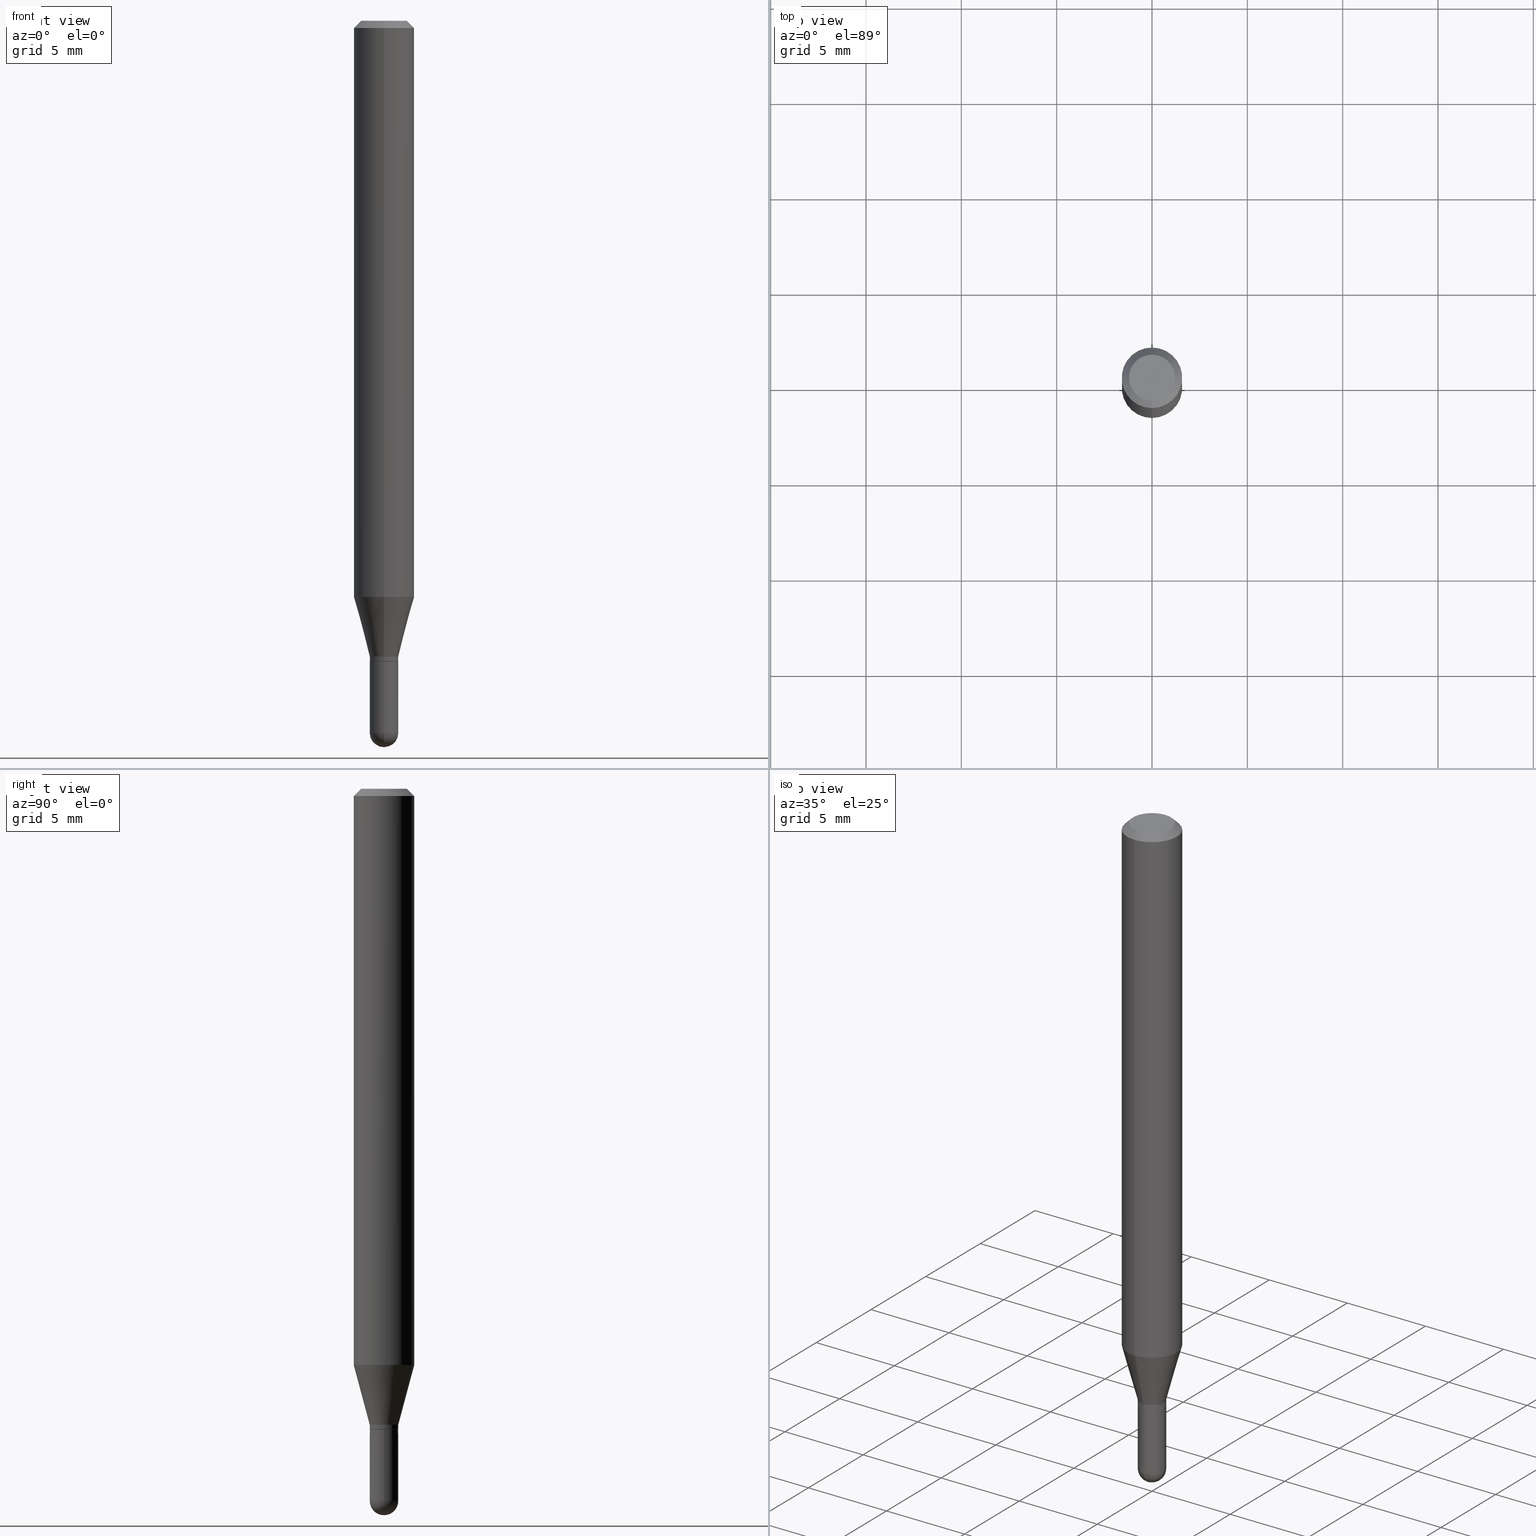
[diagram: canonical four-view strip — front | top / right | iso, engineering-drawing reading convention]
A machine part, canonical four-view strip (front | top / right | iso — engineering-drawing reading convention). The complete STEP part file that produces these views, byte-faithful:
ISO-10303-21;
HEADER;
FILE_DESCRIPTION (( 'STEP AP203' ),
    '1' );
FILE_NAME ('00936.STEP',
    '2024-03-07T19:02:21',
    ( '' ),
    ( '' ),
    'SwSTEP 2.0',
    'SolidWorks 2023',
    '' );
FILE_SCHEMA (( 'CONFIG_CONTROL_DESIGN' ));
ENDSEC;

DATA;
#1 = LINE ( 'NONE', #76, #365 ) ;
#2 = CARTESIAN_POINT ( 'NONE',  ( 0.02950000000000000192, -5.082723959020908406E-15, -1.470500000000000140 ) ) ;
#3 = EDGE_CURVE ( 'NONE', #32, #80, #479, .T. ) ;
#4 =( GEOMETRIC_REPRESENTATION_CONTEXT ( 3 ) GLOBAL_UNCERTAINTY_ASSIGNED_CONTEXT ( ( #406 ) ) GLOBAL_UNIT_ASSIGNED_CONTEXT ( ( #170, #12, #52 ) ) REPRESENTATION_CONTEXT ( 'NONE', 'WORKASPACE' ) );
#5 = CYLINDRICAL_SURFACE ( 'NONE', #243, 0.02950000000000000192 ) ;
#6 = DIRECTION ( 'NONE',  ( 4.937700262164548042E-15, 0.7071067811865451302, -0.7071067811865499042 ) ) ;
#7 = PERSON_AND_ORGANIZATION ( #161, #386 ) ;
#8 = DIRECTION ( 'NONE',  ( -2.445457374609908707E-29, 3.491497709509516713E-15, 1.000000000000000000 ) ) ;
#9 = CIRCLE ( 'NONE', #187, 0.06250000000000000000 ) ;
#10 = APPROVAL_PERSON_ORGANIZATION ( #86, #240, #371 ) ;
#11 = EDGE_CURVE ( 'NONE', #151, #430, #1, .T. ) ;
#12 =( NAMED_UNIT ( * ) PLANE_ANGLE_UNIT ( ) SI_UNIT ( $, .RADIAN. ) );
#13 = ORIENTED_EDGE ( 'NONE', *, *, #380, .F. ) ;
#14 = ADVANCED_BREP_SHAPE_REPRESENTATION ( '00936', ( #142, #483, #279 ), #4 ) ;
#15 = COORDINATED_UNIVERSAL_TIME_OFFSET ( 5, 0, .BEHIND. ) ;
#16 = ORIENTED_EDGE ( 'NONE', *, *, #509, .T. ) ;
#17 = EDGE_CURVE ( 'NONE', #156, #393, #426, .T. ) ;
#18 = EDGE_LOOP ( 'NONE', ( #117, #42, #305, #98 ) ) ;
#19 = CONICAL_SURFACE ( 'NONE', #316, 0.06250000000000000000, 0.7853981633974483900 ) ;
#20 = FACE_OUTER_BOUND ( 'NONE', #140, .T. ) ;
#21 = AXIS2_PLACEMENT_3D ( 'NONE', #355, #244, #467 ) ;
#22 = VERTEX_POINT ( 'NONE', #471 ) ;
#23 = FACE_OUTER_BOUND ( 'NONE', #493, .T. ) ;
#24 = SHAPE_DEFINITION_REPRESENTATION ( #246, #14 ) ;
#25 = ORIENTED_EDGE ( 'NONE', *, *, #492, .T. ) ;
#26 = DIRECTION ( 'NONE',  ( 2.445457374609908147E-29, -3.491497709509517108E-15, -1.000000000000000000 ) ) ;
#27 = ORIENTED_EDGE ( 'NONE', *, *, #405, .T. ) ;
#28 = EDGE_CURVE ( 'NONE', #188, #60, #48, .T. ) ;
#29 = CARTESIAN_POINT ( 'NONE',  ( 3.316907271900976096E-16, 0.04749999999999999362, -1.702759121942912783E-16 ) ) ;
#30 = CIRCLE ( 'NONE', #95, 0.02950000000000000192 ) ;
#31 = DATE_TIME_ROLE ( 'classification_date' ) ;
#32 = VERTEX_POINT ( 'NONE', #504 ) ;
#33 = CARTESIAN_POINT ( 'NONE',  ( 3.210885532862809934E-29, -4.584336492585996193E-15, -1.313000000000000167 ) ) ;
#34 = ORIENTED_EDGE ( 'NONE', *, *, #345, .F. ) ;
#35 = CARTESIAN_POINT ( 'NONE',  ( 3.596061879495243621E-29, -5.134223308768845522E-15, -1.470500000000000140 ) ) ;
#36 = COORDINATED_UNIVERSAL_TIME_OFFSET ( 5, 0, .BEHIND. ) ;
#37 = ADVANCED_FACE ( 'NONE', ( #278 ), #242, .T. ) ;
#38 = CYLINDRICAL_SURFACE ( 'NONE', #331, 0.02950000000000000192 ) ;
#39 = DIRECTION ( 'NONE',  ( 6.982962677686265922E-15, 1.000000000000000000, -3.483106191921935554E-15 ) ) ;
#40 = AXIS2_PLACEMENT_3D ( 'NONE', #264, #423, #460 ) ;
#41 = CIRCLE ( 'NONE', #158, 0.02899999999999999800 ) ;
#42 = ORIENTED_EDGE ( 'NONE', *, *, #17, .T. ) ;
#43 = CARTESIAN_POINT ( 'NONE',  ( 3.210885532862809934E-29, -4.584336492585996193E-15, -1.313000000000000167 ) ) ;
#44 = ORIENTED_EDGE ( 'NONE', *, *, #57, .T. ) ;
#45 = ADVANCED_FACE ( 'NONE', ( #281 ), #38, .T. ) ;
#46 = DIRECTION ( 'NONE',  ( -6.982962677686265922E-15, -1.000000000000000000, 3.491497709509516713E-15 ) ) ;
#47 = VERTEX_POINT ( 'NONE', #125 ) ;
#48 = CIRCLE ( 'NONE', #49, 0.06250000000000000000 ) ;
#49 = AXIS2_PLACEMENT_3D ( 'NONE', #247, #362, #115 ) ;
#50 = CC_DESIGN_APPROVAL ( #124, ( #308 ) ) ;
#51 = LENGTH_MEASURE_WITH_UNIT ( LENGTH_MEASURE( 0.02539999999999999897 ), #209 );
#52 =( NAMED_UNIT ( * ) SI_UNIT ( $, .STERADIAN. ) SOLID_ANGLE_UNIT ( ) );
#53 = CC_DESIGN_PERSON_AND_ORGANIZATION_ASSIGNMENT ( #347, #385, ( #245 ) ) ;
#54 = CARTESIAN_POINT ( 'NONE',  ( 4.364351673553919652E-16, 0.06249999999999995143, -0.01500000000000022669 ) ) ;
#55 = ORIENTED_EDGE ( 'NONE', *, *, #28, .F. ) ;
#56 = CIRCLE ( 'NONE', #465, 0.02950000000000002967 ) ;
#57 = EDGE_CURVE ( 'NONE', #147, #32, #428, .T. ) ;
#58 = ORIENTED_EDGE ( 'NONE', *, *, #3, .T. ) ;
#59 = DIRECTION ( 'NONE',  ( -6.982962677686265133E-15, -1.000000000000000000, 3.491497709509516319E-15 ) ) ;
#60 = VERTEX_POINT ( 'NONE', #511 ) ;
#61 = AXIS2_PLACEMENT_3D ( 'NONE', #306, #420, #456 ) ;
#62 = DIRECTION ( 'NONE',  ( -4.851104656540964275E-15, -0.7071067811865500152, -0.7071067811865450192 ) ) ;
#63 = LOCAL_TIME ( 14, 2, 21.00000000000000000, #15 ) ;
#64 = ORIENTED_EDGE ( 'NONE', *, *, #183, .T. ) ;
#65 = DIRECTION ( 'NONE',  ( 6.982962677686265922E-15, 1.000000000000000000, -3.483106191921935554E-15 ) ) ;
#66 = EDGE_CURVE ( 'NONE', #419, #80, #249, .T. ) ;
#67 = ORIENTED_EDGE ( 'NONE', *, *, #447, .T. ) ;
#68 = DIRECTION ( 'NONE',  ( -2.445457374609908987E-29, 3.491497709509517108E-15, 1.000000000000000000 ) ) ;
#69 = VERTEX_POINT ( 'NONE', #391 ) ;
#70 = CARTESIAN_POINT ( 'NONE',  ( 2.078337502098613392E-16, 0.02899999999999538017, -1.323000000000000176 ) ) ;
#71 = CARTESIAN_POINT ( 'NONE',  ( 0.02950000000000000192, -2.059973989917448660E-16, 1.438472148859801150E-30 ) ) ;
#72 = CARTESIAN_POINT ( 'NONE',  ( 2.166563228332078475E-46, -3.093307054855400390E-32, -8.859541985178464573E-18 ) ) ;
#73 = PERSON_AND_ORGANIZATION ( #161, #386 ) ;
#74 = ORIENTED_EDGE ( 'NONE', *, *, #183, .F. ) ;
#75 = DIRECTION ( 'NONE',  ( -1.000000000000000000, 6.982962677686266711E-15, -4.883557194083112340E-29 ) ) ;
#76 = CARTESIAN_POINT ( 'NONE',  ( 2.096101070492630704E-16, 0.02949999999999561653, -1.313000000000000167 ) ) ;
#77 = DIRECTION ( 'NONE',  ( 2.445457374609908707E-29, -3.491497709509516713E-15, -1.000000000000000000 ) ) ;
#78 = CIRCLE ( 'NONE', #61, 0.02949999999999992212 ) ;
#79 = CIRCLE ( 'NONE', #259, 0.04749999999999999362 ) ;
#80 = VERTEX_POINT ( 'NONE', #195 ) ;
#81 = CARTESIAN_POINT ( 'NONE',  ( 3.235340106608908696E-29, -4.619251469681091147E-15, -1.323000000000000176 ) ) ;
#82 = CALENDAR_DATE ( 2024, 7, 3 ) ;
#83 = DIRECTION ( 'NONE',  ( -2.445468806185136877E-29, 3.491481338843145188E-15, 1.000000000000000000 ) ) ;
#84 = DIRECTION ( 'NONE',  ( -6.982962677686265922E-15, -1.000000000000000000, 0.000000000000000000 ) ) ;
#85 = PRODUCT_RELATED_PRODUCT_CATEGORY ( 'detail', '', ( #233 ) ) ;
#86 = PERSON_AND_ORGANIZATION ( #161, #386 ) ;
#87 = DIRECTION ( 'NONE',  ( 1.000000000000000000, -6.982962677686265922E-15, 4.876176775795935793E-29 ) ) ;
#88 = AXIS2_PLACEMENT_3D ( 'NONE', #407, #441, #290 ) ;
#89 = DIRECTION ( 'NONE',  ( 1.000000000000000000, 0.000000000000000000, 0.000000000000000000 ) ) ;
#90 = CC_DESIGN_PERSON_AND_ORGANIZATION_ASSIGNMENT ( #372, #296, ( #218 ) ) ;
#91 = EDGE_CURVE ( 'NONE', #419, #47, #30, .T. ) ;
#92 = CARTESIAN_POINT ( 'NONE',  ( 4.440892098500625669E-16, 0.06250000000000000000, -2.182186068443447946E-16 ) ) ;
#93 = CARTESIAN_POINT ( 'NONE',  ( -3.773273898774340269E-16, -0.04749999999999999362, 1.569865992165235968E-16 ) ) ;
#94 = AXIS2_PLACEMENT_3D ( 'NONE', #162, #354, #154 ) ;
#95 = AXIS2_PLACEMENT_3D ( 'NONE', #357, #508, #468 ) ;
#96 = CARTESIAN_POINT ( 'NONE',  ( 3.235340106608908696E-29, -4.619251469681091147E-15, -1.323000000000000176 ) ) ;
#97 = APPROVAL_DATE_TIME ( #449, #240 ) ;
#98 = ORIENTED_EDGE ( 'NONE', *, *, #129, .F. ) ;
#99 = DIRECTION ( 'NONE',  ( 1.000000000000000000, -6.982962677686250933E-15, 0.000000000000000000 ) ) ;
#100 = ORIENTED_EDGE ( 'NONE', *, *, #181, .F. ) ;
#101 = FACE_OUTER_BOUND ( 'NONE', #502, .T. ) ;
#102 = VECTOR ( 'NONE', #83, 39.37007874015748143 ) ;
#103 = ORIENTED_EDGE ( 'NONE', *, *, #123, .T. ) ;
#104 = DIRECTION ( 'NONE',  ( 1.000000000000000000, -6.982962677686250144E-15, 0.000000000000000000 ) ) ;
#105 = ADVANCED_FACE ( 'NONE', ( #432 ), #5, .T. ) ;
#106 = APPROVAL_ROLE ( '' ) ;
#107 = ORIENTED_EDGE ( 'NONE', *, *, #364, .F. ) ;
#108 = DIRECTION ( 'NONE',  ( -2.445457374609908707E-29, 3.491497709509516713E-15, 1.000000000000000000 ) ) ;
#109 = ORIENTED_EDGE ( 'NONE', *, *, #337, .T. ) ;
#110 = FACE_OUTER_BOUND ( 'NONE', #344, .T. ) ;
#111 = ORIENTED_EDGE ( 'NONE', *, *, #57, .F. ) ;
#112 = ADVANCED_FACE ( 'NONE', ( #477 ), #252, .T. ) ;
#113 = DIRECTION ( 'NONE',  ( -2.445457374609908707E-29, 3.491497709509516713E-15, 1.000000000000000000 ) ) ;
#114 = AXIS2_PLACEMENT_3D ( 'NONE', #503, #359, #398 ) ;
#115 = DIRECTION ( 'NONE',  ( -6.982962677686265922E-15, -1.000000000000000000, 3.483106191921935554E-15 ) ) ;
#116 = CARTESIAN_POINT ( 'NONE',  ( 3.668186061914865531E-31, -5.237246564264278866E-17, -0.01500000000000000812 ) ) ;
#117 = ORIENTED_EDGE ( 'NONE', *, *, #164, .F. ) ;
#118 = LINE ( 'NONE', #469, #396 ) ;
#119 = ORIENTED_EDGE ( 'NONE', *, *, #389, .F. ) ;
#120 = DIRECTION ( 'NONE',  ( 5.024295867788190974E-15, 0.7071067811865681119, 0.7071067811865270336 ) ) ;
#121 = AXIS2_PLACEMENT_3D ( 'NONE', #180, #351, #99 ) ;
#122 = CIRCLE ( 'NONE', #507, 0.02950000000000019967 ) ;
#123 = EDGE_CURVE ( 'NONE', #485, #188, #439, .T. ) ;
#124 = APPROVAL ( #499, 'UNSPECIFIED' ) ;
#125 = CARTESIAN_POINT ( 'NONE',  ( 2.059973989917809071E-16, 0.02949999999999488101, -1.470500000000000140 ) ) ;
#126 = DIRECTION ( 'NONE',  ( 6.982962677686266711E-15, 1.000000000000000000, 0.000000000000000000 ) ) ;
#127 = LINE ( 'NONE', #92, #292 ) ;
#128 = ORIENTED_EDGE ( 'NONE', *, *, #509, .F. ) ;
#129 = EDGE_CURVE ( 'NONE', #47, #147, #348, .T. ) ;
#130 = APPROVAL_STATUS ( 'not_yet_approved' ) ;
#131 = AXIS2_PLACEMENT_3D ( 'NONE', #464, #113, #321 ) ;
#132 = DESIGN_CONTEXT ( 'detailed design', #229, 'design' ) ;
#133 = APPROVAL_ROLE ( '' ) ;
#134 = PERSON_AND_ORGANIZATION ( #161, #386 ) ;
#135 = ADVANCED_FACE ( 'NONE', ( #20 ), #221, .F. ) ;
#136 = DATE_AND_TIME ( #293, #63 ) ;
#137 = VECTOR ( 'NONE', #409, 39.37007874015748143 ) ;
#138 = ORIENTED_EDGE ( 'NONE', *, *, #190, .F. ) ;
#139 = CARTESIAN_POINT ( 'NONE',  ( 3.593539138942164173E-29, -5.137836016826330348E-15, -1.470500000000000140 ) ) ;
#140 = EDGE_LOOP ( 'NONE', ( #487, #58 ) ) ;
#141 = LINE ( 'NONE', #384, #410 ) ;
#142 = MANIFOLD_SOLID_BREP ( 'Body-Move/Copy2[1]', #415 ) ;
#143 = ORIENTED_EDGE ( 'NONE', *, *, #214, .F. ) ;
#144 = EDGE_CURVE ( 'NONE', #80, #32, #230, .T. ) ;
#145 = CARTESIAN_POINT ( 'NONE',  ( -2.059973989917126460E-16, -0.02950000000000463710, -1.322500000000000231 ) ) ;
#146 = CONICAL_SURFACE ( 'NONE', #258, 0.06250000000000000000, 0.7853981633974483900 ) ;
#147 = VERTEX_POINT ( 'NONE', #501 ) ;
#148 = LOCAL_TIME ( 14, 2, 21.00000000000000000, #150 ) ;
#149 = CARTESIAN_POINT ( 'NONE',  ( 2.096101070492299629E-16, 0.02950000000000006437, -1.029991824305309578E-16 ) ) ;
#150 = COORDINATED_UNIVERSAL_TIME_OFFSET ( 5, 0, .BEHIND. ) ;
#151 = VERTEX_POINT ( 'NONE', #378 ) ;
#152 = DIRECTION ( 'NONE',  ( 6.982962677686265922E-15, 1.000000000000000000, 0.000000000000000000 ) ) ;
#153 = PERSON_AND_ORGANIZATION ( #161, #386 ) ;
#154 = DIRECTION ( 'NONE',  ( 1.000000000000000000, -6.982962677686250933E-15, 0.000000000000000000 ) ) ;
#155 = DIRECTION ( 'NONE',  ( -6.982962677686265922E-15, -1.000000000000000000, 0.000000000000000000 ) ) ;
#156 = VERTEX_POINT ( 'NONE', #301 ) ;
#157 = CARTESIAN_POINT ( 'NONE',  ( -4.364351673553916201E-16, -0.06250000000000000000, 2.182186068443447946E-16 ) ) ;
#158 = AXIS2_PLACEMENT_3D ( 'NONE', #81, #166, #326 ) ;
#159 = EDGE_LOOP ( 'NONE', ( #13, #16, #412, #143 ) ) ;
#160 = CARTESIAN_POINT ( 'NONE',  ( -4.364351673553626788E-16, -0.06250000000000417721, -1.189842323350228215 ) ) ;
#161 = PERSON ( 'UNSPECIFIED', 'UNSPECIFIED', 'UNSPECIFIED', ('UNSPECIFIED'), ('UNSPECIFIED'), ('UNSPECIFIED') ) ;
#162 = CARTESIAN_POINT ( 'NONE',  ( 3.235355230582935570E-29, -4.619229811289481459E-15, -1.323000000000000176 ) ) ;
#163 = CARTESIAN_POINT ( 'NONE',  ( 3.593539138942164173E-29, -5.137836016826330348E-15, -1.470500000000000140 ) ) ;
#164 = EDGE_CURVE ( 'NONE', #156, #47, #56, .T. ) ;
#165 = CARTESIAN_POINT ( 'NONE',  ( 0.000000000000000000, 0.000000000000000000, 0.000000000000000000 ) ) ;
#166 = DIRECTION ( 'NONE',  ( -2.445457374609908707E-29, 3.491497709509516713E-15, 1.000000000000000000 ) ) ;
#167 = VECTOR ( 'NONE', #236, 39.37007874015748143 ) ;
#168 = CC_DESIGN_APPROVAL ( #400, ( #218 ) ) ;
#169 = DIRECTION ( 'NONE',  ( -2.445468806185136597E-29, 3.491481338843145583E-15, 1.000000000000000000 ) ) ;
#170 =( CONVERSION_BASED_UNIT ( 'INCH', #51 ) LENGTH_UNIT ( ) NAMED_UNIT ( #270 ) );
#171 = ADVANCED_FACE ( 'NONE', ( #23 ), #184, .F. ) ;
#172 = DIRECTION ( 'NONE',  ( -6.982962677686265133E-15, -1.000000000000000000, 3.491497709509516319E-15 ) ) ;
#173 = CONICAL_SURFACE ( 'NONE', #457, 0.02899999999999999800, 0.7853981633974739252 ) ;
#174 = VECTOR ( 'NONE', #319, 39.37007874015748143 ) ;
#175 = CARTESIAN_POINT ( 'NONE',  ( 0.000000000000000000, 0.000000000000000000, 0.000000000000000000 ) ) ;
#176 = ORIENTED_EDGE ( 'NONE', *, *, #475, .F. ) ;
#177 = CARTESIAN_POINT ( 'NONE',  ( 2.909708684259803731E-29, -4.154331746654804054E-15, -1.189842323350228437 ) ) ;
#178 = CONICAL_SURFACE ( 'NONE', #254, 0.02950000000000019967, 0.2617993877991502960 ) ;
#179 = VERTEX_POINT ( 'NONE', #416 ) ;
#180 = CARTESIAN_POINT ( 'NONE',  ( 3.235355230582935570E-29, -4.619229811289481459E-15, -1.323000000000000176 ) ) ;
#181 = EDGE_CURVE ( 'NONE', #211, #179, #141, .T. ) ;
#182 = ORIENTED_EDGE ( 'NONE', *, *, #164, .T. ) ;
#183 = EDGE_CURVE ( 'NONE', #430, #350, #298, .T. ) ;
#184 = PLANE ( 'NONE',  #395 ) ;
#185 = EDGE_LOOP ( 'NONE', ( #27, #402, #497, #100 ) ) ;
#186 = CARTESIAN_POINT ( 'NONE',  ( 0.000000000000000000, 0.000000000000000000, 0.000000000000000000 ) ) ;
#187 = AXIS2_PLACEMENT_3D ( 'NONE', #376, #189, #341 ) ;
#188 = VERTEX_POINT ( 'NONE', #388 ) ;
#189 = DIRECTION ( 'NONE',  ( -2.445457374609908707E-29, 3.491497709509516713E-15, 1.000000000000000000 ) ) ;
#190 = EDGE_CURVE ( 'NONE', #350, #430, #277, .T. ) ;
#191 = ORIENTED_EDGE ( 'NONE', *, *, #66, .F. ) ;
#192 = FACE_OUTER_BOUND ( 'NONE', #352, .T. ) ;
#193 = ORIENTED_EDGE ( 'NONE', *, *, #144, .F. ) ;
#194 = CARTESIAN_POINT ( 'NONE',  ( 0.000000000000000000, 0.000000000000000000, 0.000000000000000000 ) ) ;
#195 = CARTESIAN_POINT ( 'NONE',  ( 0.02949999999999999845, -4.825227210281225980E-15, -1.323000000000000176 ) ) ;
#196 = AXIS2_PLACEMENT_3D ( 'NONE', #186, #343, #59 ) ;
#197 = DIRECTION ( 'NONE',  ( -2.445457374609908707E-29, 3.491497709509516713E-15, 1.000000000000000000 ) ) ;
#198 = AXIS2_PLACEMENT_3D ( 'NONE', #96, #335, #330 ) ;
#199 = CIRCLE ( 'NONE', #21, 0.02949999999999992212 ) ;
#200 = DIRECTION ( 'NONE',  ( -2.445468806185136597E-29, 3.491481338843145583E-15, 1.000000000000000000 ) ) ;
#201 = ADVANCED_FACE ( 'NONE', ( #110 ), #413, .T. ) ;
#202 = FACE_OUTER_BOUND ( 'NONE', #422, .T. ) ;
#203 = DIRECTION ( 'NONE',  ( -7.105427357601000281E-15, -1.000000000000000000, 0.000000000000000000 ) ) ;
#204 = AXIS2_PLACEMENT_3D ( 'NONE', #238, #463, #203 ) ;
#205 = CIRCLE ( 'NONE', #114, 0.02950000000000000192 ) ;
#206 = EDGE_CURVE ( 'NONE', #60, #188, #9, .T. ) ;
#207 = APPROVAL_STATUS ( 'not_yet_approved' ) ;
#208 = MECHANICAL_CONTEXT ( 'NONE', #482, 'mechanical' ) ;
#209 =( LENGTH_UNIT ( ) NAMED_UNIT ( * ) SI_UNIT ( $, .METRE. ) );
#210 = LINE ( 'NONE', #54, #444 ) ;
#211 = VERTEX_POINT ( 'NONE', #145 ) ;
#212 = VECTOR ( 'NONE', #68, 39.37007874015748143 ) ;
#213 = CC_DESIGN_SECURITY_CLASSIFICATION ( #308, ( #245 ) ) ;
#214 = EDGE_CURVE ( 'NONE', #383, #211, #78, .T. ) ;
#215 = DIRECTION ( 'NONE',  ( 0.000000000000000000, 0.000000000000000000, 1.000000000000000000 ) ) ;
#216 = ORIENTED_EDGE ( 'NONE', *, *, #294, .T. ) ;
#217 = DIRECTION ( 'NONE',  ( -2.445457374609908707E-29, 3.491497709509516713E-15, 1.000000000000000000 ) ) ;
#218 = PRODUCT_DEFINITION ( 'UNKNOWN', '', #245, #132 ) ;
#219 = AXIS2_PLACEMENT_3D ( 'NONE', #262, #276, #312 ) ;
#220 = ORIENTED_EDGE ( 'NONE', *, *, #434, .F. ) ;
#221 = PLANE ( 'NONE',  #40 ) ;
#222 = DATE_AND_TIME ( #225, #491 ) ;
#223 = ORIENTED_EDGE ( 'NONE', *, *, #374, .F. ) ;
#224 = CARTESIAN_POINT ( 'NONE',  ( 3.235340106608908696E-29, -4.619251469681091147E-15, -1.323000000000000176 ) ) ;
#225 = CALENDAR_DATE ( 2024, 7, 3 ) ;
#226 = ORIENTED_EDGE ( 'NONE', *, *, #206, .F. ) ;
#227 = ADVANCED_FACE ( 'NONE', ( #490 ), #173, .T. ) ;
#228 = DIRECTION ( 'NONE',  ( 1.000000000000000000, -6.982962677686265922E-15, 4.883557194083112340E-29 ) ) ;
#229 = APPLICATION_CONTEXT ( 'configuration controlled 3d designs of mechanical parts and assemblies' ) ;
#230 = CIRCLE ( 'NONE', #121, 0.02949999999999999845 ) ;
#231 = EDGE_LOOP ( 'NONE', ( #334, #182, #459, #119 ) ) ;
#232 = AXIS2_PLACEMENT_3D ( 'NONE', #175, #8, #172 ) ;
#233 = PRODUCT ( '00936', '00936', '', ( #208 ) ) ;
#234 = DIRECTION ( 'NONE',  ( -2.445457374609908147E-29, 3.491497709509517108E-15, 1.000000000000000000 ) ) ;
#235 = SECURITY_CLASSIFICATION_LEVEL ( 'unclassified' ) ;
#236 = DIRECTION ( 'NONE',  ( -2.445468806185136877E-29, 3.491481338843145188E-15, 1.000000000000000000 ) ) ;
#237 = DIRECTION ( 'NONE',  ( -6.982962677686266711E-15, -1.000000000000000000, 3.491497709509517108E-15 ) ) ;
#238 = CARTESIAN_POINT ( 'NONE',  ( 3.593539138942164173E-29, -5.137836016826330348E-15, -1.470500000000000140 ) ) ;
#239 = LINE ( 'NONE', #157, #174 ) ;
#240 = APPROVAL ( #207, 'UNSPECIFIED' ) ;
#241 = CC_DESIGN_PERSON_AND_ORGANIZATION_ASSIGNMENT ( #73, #390, ( #308 ) ) ;
#242 = CYLINDRICAL_SURFACE ( 'NONE', #291, 0.06250000000000000000 ) ;
#243 = AXIS2_PLACEMENT_3D ( 'NONE', #289, #169, #87 ) ;
#244 = DIRECTION ( 'NONE',  ( -2.445457374609908707E-29, 3.491497709509516713E-15, 1.000000000000000000 ) ) ;
#245 = PRODUCT_DEFINITION_FORMATION_WITH_SPECIFIED_SOURCE ( 'ANY', '', #233, .NOT_KNOWN. ) ;
#246 = PRODUCT_DEFINITION_SHAPE ( 'NONE', 'NONE',  #218 ) ;
#247 = CARTESIAN_POINT ( 'NONE',  ( 3.668186061914865531E-31, -5.237246564264278866E-17, -0.01500000000000000812 ) ) ;
#248 = CARTESIAN_POINT ( 'NONE',  ( 4.440892098500915082E-16, 0.06249999999999580891, -1.189842323350228437 ) ) ;
#249 = LINE ( 'NONE', #71, #167 ) ;
#250 = ADVANCED_FACE ( 'NONE', ( #269 ), #146, .T. ) ;
#251 = FACE_OUTER_BOUND ( 'NONE', #300, .T. ) ;
#252 = SPHERICAL_SURFACE ( 'NONE', #480, 0.02950000000000002967 ) ;
#253 = LINE ( 'NONE', #256, #137 ) ;
#254 = AXIS2_PLACEMENT_3D ( 'NONE', #43, #431, #155 ) ;
#255 = LOCAL_TIME ( 14, 2, 21.00000000000000000, #445 ) ;
#256 = CARTESIAN_POINT ( 'NONE',  ( -2.025059176528693183E-16, -0.02900000000000461584, -1.323000000000000176 ) ) ;
#257 = ADVANCED_FACE ( 'NONE', ( #101 ), #382, .F. ) ;
#258 = AXIS2_PLACEMENT_3D ( 'NONE', #454, #425, #65 ) ;
#259 = AXIS2_PLACEMENT_3D ( 'NONE', #72, #363, #237 ) ;
#260 = ORIENTED_EDGE ( 'NONE', *, *, #11, .F. ) ;
#261 = EDGE_CURVE ( 'NONE', #383, #151, #498, .T. ) ;
#262 = CARTESIAN_POINT ( 'NONE',  ( 2.909708684259803731E-29, -4.154331746654804054E-15, -1.189842323350228437 ) ) ;
#263 = ORIENTED_EDGE ( 'NONE', *, *, #364, .T. ) ;
#264 = CARTESIAN_POINT ( 'NONE',  ( 2.059973989917772093E-16, 0.02949999999999538061, -1.323000000000000176 ) ) ;
#265 = PERSON_AND_ORGANIZATION_ROLE ( 'design_supplier' ) ;
#266 = AXIS2_PLACEMENT_3D ( 'NONE', #272, #338, #104 ) ;
#267 = AXIS2_PLACEMENT_3D ( 'NONE', #163, #75, #429 ) ;
#268 = VERTEX_POINT ( 'NONE', #70 ) ;
#269 = FACE_OUTER_BOUND ( 'NONE', #450, .T. ) ;
#270 = DIMENSIONAL_EXPONENTS ( 1.000000000000000000, 0.000000000000000000, 0.000000000000000000, 0.000000000000000000, 0.000000000000000000, 0.000000000000000000, 0.000000000000000000 ) ;
#271 = ORIENTED_EDGE ( 'NONE', *, *, #345, .T. ) ;
#272 = CARTESIAN_POINT ( 'NONE',  ( 3.596061879495243621E-29, -5.134223308768845522E-15, -1.470500000000000140 ) ) ;
#273 = DATE_AND_TIME ( #421, #148 ) ;
#274 = ADVANCED_FACE ( 'NONE', ( #512 ), #505, .T. ) ;
#275 = ORIENTED_EDGE ( 'NONE', *, *, #261, .F. ) ;
#276 = DIRECTION ( 'NONE',  ( -2.445457374609908707E-29, 3.491497709509516713E-15, 1.000000000000000000 ) ) ;
#277 = CIRCLE ( 'NONE', #307, 0.06250000000000000000 ) ;
#278 = FACE_OUTER_BOUND ( 'NONE', #387, .T. ) ;
#279 = AXIS2_PLACEMENT_3D ( 'NONE', #333, #215, #89 ) ;
#280 = SPHERICAL_SURFACE ( 'NONE', #267, 0.02950000000000002967 ) ;
#281 = FACE_OUTER_BOUND ( 'NONE', #466, .T. ) ;
#282 = DIRECTION ( 'NONE',  ( -6.982962677686265922E-15, -1.000000000000000000, 3.491497709509516713E-15 ) ) ;
#283 = DIRECTION ( 'NONE',  ( -2.445457374609908707E-29, 3.491497709509516713E-15, 1.000000000000000000 ) ) ;
#284 = ORIENTED_EDGE ( 'NONE', *, *, #434, .T. ) ;
#285 = CARTESIAN_POINT ( 'NONE',  ( 3.210885532862809934E-29, -4.584336492585996193E-15, -1.313000000000000167 ) ) ;
#286 = ADVANCED_FACE ( 'NONE', ( #202 ), #489, .T. ) ;
#287 = ORIENTED_EDGE ( 'NONE', *, *, #123, .F. ) ;
#288 = DIRECTION ( 'NONE',  ( 1.000000000000000000, -6.982962677686250144E-15, 0.000000000000000000 ) ) ;
#289 = CARTESIAN_POINT ( 'NONE',  ( 0.000000000000000000, 0.000000000000000000, 0.000000000000000000 ) ) ;
#290 = DIRECTION ( 'NONE',  ( -6.982962677686265133E-15, -1.000000000000000000, 0.000000000000000000 ) ) ;
#291 = AXIS2_PLACEMENT_3D ( 'NONE', #165, #397, #282 ) ;
#292 = VECTOR ( 'NONE', #478, 39.37007874015748143 ) ;
#293 = CALENDAR_DATE ( 2024, 7, 3 ) ;
#294 = EDGE_CURVE ( 'NONE', #147, #393, #205, .T. ) ;
#295 = DATE_AND_TIME ( #408, #255 ) ;
#296 = PERSON_AND_ORGANIZATION_ROLE ( 'creator' ) ;
#297 = CLOSED_SHELL ( 'NONE', ( #461, #453, #250, #274, #286, #299, #37, #329, #257, #171, #227, #201 ) ) ;
#298 = CIRCLE ( 'NONE', #219, 0.06250000000000000000 ) ;
#299 = ADVANCED_FACE ( 'NONE', ( #474 ), #178, .T. ) ;
#300 = EDGE_LOOP ( 'NONE', ( #287, #107, #452, #336 ) ) ;
#301 = CARTESIAN_POINT ( 'NONE',  ( 3.666941839001165731E-29, -5.239028362293460590E-15, -1.500000000000000222 ) ) ;
#302 = EDGE_LOOP ( 'NONE', ( #317, #25, #55, #220 ) ) ;
#303 = CC_DESIGN_DATE_AND_TIME_ASSIGNMENT ( #222, #31, ( #308 ) ) ;
#304 = DIRECTION ( 'NONE',  ( -6.982962677686265133E-15, -1.000000000000000000, 0.000000000000000000 ) ) ;
#305 = ORIENTED_EDGE ( 'NONE', *, *, #294, .F. ) ;
#306 = CARTESIAN_POINT ( 'NONE',  ( 3.234117377921604711E-29, -4.617505720826336084E-15, -1.322500000000000231 ) ) ;
#307 = AXIS2_PLACEMENT_3D ( 'NONE', #177, #217, #496 ) ;
#308 = SECURITY_CLASSIFICATION ( '', '', #235 ) ;
#309 = ORIENTED_EDGE ( 'NONE', *, *, #11, .T. ) ;
#310 = DIRECTION ( 'NONE',  ( -6.982962677686265922E-15, -1.000000000000000000, 3.491497709509517108E-15 ) ) ;
#311 = ORIENTED_EDGE ( 'NONE', *, *, #91, .T. ) ;
#312 = DIRECTION ( 'NONE',  ( -6.982962677686265922E-15, -1.000000000000000000, 4.370956789862821150E-15 ) ) ;
#313 = EDGE_LOOP ( 'NONE', ( #111, #216, #500, #424, #435 ) ) ;
#314 = CARTESIAN_POINT ( 'NONE',  ( 3.210885532862809934E-29, -4.584336492585996193E-15, -1.313000000000000167 ) ) ;
#315 = PERSON_AND_ORGANIZATION ( #161, #386 ) ;
#316 = AXIS2_PLACEMENT_3D ( 'NONE', #116, #77, #39 ) ;
#317 = ORIENTED_EDGE ( 'NONE', *, *, #190, .T. ) ;
#318 = CC_DESIGN_PERSON_AND_ORGANIZATION_ASSIGNMENT ( #134, #369, ( #233 ) ) ;
#319 = DIRECTION ( 'NONE',  ( -2.445457374609908987E-29, 3.491497709509517108E-15, 1.000000000000000000 ) ) ;
#320 = ORIENTED_EDGE ( 'NONE', *, *, #380, .T. ) ;
#321 = DIRECTION ( 'NONE',  ( -6.982962677686266711E-15, -1.000000000000000000, 3.491497709509517108E-15 ) ) ;
#322 = ORIENTED_EDGE ( 'NONE', *, *, #440, .T. ) ;
#323 = DIRECTION ( 'NONE',  ( -2.445457374609908707E-29, 3.491497709509516713E-15, 1.000000000000000000 ) ) ;
#324 = CARTESIAN_POINT ( 'NONE',  ( 0.000000000000000000, 0.000000000000000000, 0.000000000000000000 ) ) ;
#325 = VECTOR ( 'NONE', #62, 39.37007874015748143 ) ;
#326 = DIRECTION ( 'NONE',  ( -6.982962677686265133E-15, -1.000000000000000000, 0.000000000000000000 ) ) ;
#327 = CONICAL_SURFACE ( 'NONE', #88, 0.02899999999999999800, 0.7853981633974739252 ) ;
#328 = CARTESIAN_POINT ( 'NONE',  ( 3.593539138942164173E-29, -5.137836016826330348E-15, -1.470500000000000140 ) ) ;
#329 = ADVANCED_FACE ( 'NONE', ( #251 ), #19, .T. ) ;
#330 = DIRECTION ( 'NONE',  ( -6.982962677686265133E-15, -1.000000000000000000, 0.000000000000000000 ) ) ;
#331 = AXIS2_PLACEMENT_3D ( 'NONE', #324, #200, #473 ) ;
#332 = CIRCLE ( 'NONE', #198, 0.02899999999999999800 ) ;
#333 = CARTESIAN_POINT ( 'NONE',  ( 0.000000000000000000, 0.000000000000000000, 0.000000000000000000 ) ) ;
#334 = ORIENTED_EDGE ( 'NONE', *, *, #17, .F. ) ;
#335 = DIRECTION ( 'NONE',  ( -2.445457374609908707E-29, 3.491497709509516713E-15, 1.000000000000000000 ) ) ;
#336 = ORIENTED_EDGE ( 'NONE', *, *, #206, .T. ) ;
#337 = EDGE_CURVE ( 'NONE', #179, #151, #442, .T. ) ;
#338 = DIRECTION ( 'NONE',  ( -2.445468806185136597E-29, 3.491481338843145583E-15, 1.000000000000000000 ) ) ;
#339 = AXIS2_PLACEMENT_3D ( 'NONE', #285, #323, #84 ) ;
#340 = ORIENTED_EDGE ( 'NONE', *, *, #181, .T. ) ;
#341 = DIRECTION ( 'NONE',  ( -6.982962677686265922E-15, -1.000000000000000000, 3.483106191921935554E-15 ) ) ;
#342 = ORIENTED_EDGE ( 'NONE', *, *, #486, .F. ) ;
#343 = DIRECTION ( 'NONE',  ( -2.445457374609908707E-29, 3.491497709509516713E-15, 1.000000000000000000 ) ) ;
#344 = EDGE_LOOP ( 'NONE', ( #275, #495, #340, #455 ) ) ;
#345 = EDGE_CURVE ( 'NONE', #179, #350, #510, .T. ) ;
#346 = DIRECTION ( 'NONE',  ( 6.982962677686265922E-15, 1.000000000000000000, -3.491497709509517108E-15 ) ) ;
#347 = PERSON_AND_ORGANIZATION ( #161, #386 ) ;
#348 = CIRCLE ( 'NONE', #266, 0.02950000000000000192 ) ;
#349 = CC_DESIGN_APPROVAL ( #240, ( #245 ) ) ;
#350 = VERTEX_POINT ( 'NONE', #160 ) ;
#351 = DIRECTION ( 'NONE',  ( -2.445468806185136597E-29, 3.491481338843145583E-15, 1.000000000000000000 ) ) ;
#352 = EDGE_LOOP ( 'NONE', ( #322, #320, #377, #342 ) ) ;
#353 = DIRECTION ( 'NONE',  ( -2.445457374609908707E-29, 3.491497709509516713E-15, 1.000000000000000000 ) ) ;
#354 = DIRECTION ( 'NONE',  ( -2.445468806185136597E-29, 3.491481338843145583E-15, 1.000000000000000000 ) ) ;
#355 = CARTESIAN_POINT ( 'NONE',  ( 3.234117377921604711E-29, -4.617505720826336084E-15, -1.322500000000000231 ) ) ;
#356 = VECTOR ( 'NONE', #472, 39.37007874015748143 ) ;
#357 = CARTESIAN_POINT ( 'NONE',  ( 3.596061879495243621E-29, -5.134223308768845522E-15, -1.470500000000000140 ) ) ;
#358 = LOCAL_TIME ( 14, 2, 21.00000000000000000, #476 ) ;
#359 = DIRECTION ( 'NONE',  ( -2.445468806185136597E-29, 3.491481338843145583E-15, 1.000000000000000000 ) ) ;
#360 = ORIENTED_EDGE ( 'NONE', *, *, #28, .T. ) ;
#361 = FACE_OUTER_BOUND ( 'NONE', #231, .T. ) ;
#362 = DIRECTION ( 'NONE',  ( -2.445457374609908707E-29, 3.491497709509516713E-15, 1.000000000000000000 ) ) ;
#363 = DIRECTION ( 'NONE',  ( -2.445457374609908707E-29, 3.491497709509516713E-15, 1.000000000000000000 ) ) ;
#364 = EDGE_CURVE ( 'NONE', #69, #485, #417, .T. ) ;
#365 = VECTOR ( 'NONE', #399, 39.37007874015748143 ) ;
#366 = DIRECTION ( 'NONE',  ( -1.000000000000000000, 6.982962677686266711E-15, -4.883557194083112340E-29 ) ) ;
#367 = AXIS2_PLACEMENT_3D ( 'NONE', #29, #26, #346 ) ;
#368 = AXIS2_PLACEMENT_3D ( 'NONE', #35, #438, #288 ) ;
#369 = PERSON_AND_ORGANIZATION_ROLE ( 'design_owner' ) ;
#370 = ADVANCED_FACE ( 'NONE', ( #361 ), #280, .T. ) ;
#371 = APPROVAL_ROLE ( '' ) ;
#372 = PERSON_AND_ORGANIZATION ( #161, #386 ) ;
#373 = APPROVAL_PERSON_ORGANIZATION ( #153, #124, #106 ) ;
#374 = EDGE_CURVE ( 'NONE', #485, #69, #79, .T. ) ;
#375 = ORIENTED_EDGE ( 'NONE', *, *, #492, .F. ) ;
#376 = CARTESIAN_POINT ( 'NONE',  ( 3.668186061914865531E-31, -5.237246564264278866E-17, -0.01500000000000000812 ) ) ;
#377 = ORIENTED_EDGE ( 'NONE', *, *, #405, .F. ) ;
#378 = CARTESIAN_POINT ( 'NONE',  ( 3.268496584496773879E-16, 0.02949999999999561653, -1.313000000000000167 ) ) ;
#379 = APPROVAL_DATE_TIME ( #273, #124 ) ;
#380 = EDGE_CURVE ( 'NONE', #268, #383, #118, .T. ) ;
#381 = ORIENTED_EDGE ( 'NONE', *, *, #129, .T. ) ;
#382 = PLANE ( 'NONE',  #367 ) ;
#383 = VERTEX_POINT ( 'NONE', #392 ) ;
#384 = CARTESIAN_POINT ( 'NONE',  ( -2.059973989917452604E-16, -0.02950000000000006437, 1.029991824305309578E-16 ) ) ;
#385 = PERSON_AND_ORGANIZATION_ROLE ( 'creator' ) ;
#386 = ORGANIZATION ( 'UNSPECIFIED', 'UNSPECIFIED', '' ) ;
#387 = EDGE_LOOP ( 'NONE', ( #375, #64, #284, #226 ) ) ;
#388 = CARTESIAN_POINT ( 'NONE',  ( -4.364351673553912750E-16, -0.06250000000000005551, -0.01499999999999979128 ) ) ;
#389 = EDGE_CURVE ( 'NONE', #393, #419, #411, .T. ) ;
#390 = PERSON_AND_ORGANIZATION_ROLE ( 'classification_officer' ) ;
#391 = CARTESIAN_POINT ( 'NONE',  ( 3.840629472727447874E-16, 0.04749999999999999362, -1.747056831868805136E-16 ) ) ;
#392 = CARTESIAN_POINT ( 'NONE',  ( 2.096101070492606052E-16, 0.02949999999999520367, -1.322500000000000231 ) ) ;
#393 = VERTEX_POINT ( 'NONE', #433 ) ;
#394 = DIRECTION ( 'NONE',  ( -6.982962677686265922E-15, -1.000000000000000000, 0.000000000000000000 ) ) ;
#395 = AXIS2_PLACEMENT_3D ( 'NONE', #224, #234, #310 ) ;
#396 = VECTOR ( 'NONE', #120, 39.37007874015748143 ) ;
#397 = DIRECTION ( 'NONE',  ( -2.445457374609908707E-29, 3.491497709509516713E-15, 1.000000000000000000 ) ) ;
#398 = DIRECTION ( 'NONE',  ( 1.000000000000000000, -6.982962677686250144E-15, 0.000000000000000000 ) ) ;
#399 = DIRECTION ( 'NONE',  ( 1.839019923739600315E-15, 0.2588190451025249583, 0.9659258262890670910 ) ) ;
#400 = APPROVAL ( #130, 'UNSPECIFIED' ) ;
#401 = DIRECTION ( 'NONE',  ( -6.982962677686265922E-15, -1.000000000000000000, 0.000000000000000000 ) ) ;
#402 = ORIENTED_EDGE ( 'NONE', *, *, #261, .T. ) ;
#403 = APPLICATION_PROTOCOL_DEFINITION ( 'international standard', 'config_control_design', 1994, #229 ) ;
#404 = CARTESIAN_POINT ( 'NONE',  ( -4.287811248607203282E-16, -0.06250000000000005551, -0.01499999999999979128 ) ) ;
#405 = EDGE_CURVE ( 'NONE', #211, #383, #199, .T. ) ;
#406 = UNCERTAINTY_MEASURE_WITH_UNIT (LENGTH_MEASURE( 1.000000000000000082E-05 ), #170, 'distance_accuracy_value', 'NONE');
#407 = CARTESIAN_POINT ( 'NONE',  ( 3.235340106608908696E-29, -4.619251469681091147E-15, -1.323000000000000176 ) ) ;
#408 = CALENDAR_DATE ( 2024, 7, 3 ) ;
#409 = DIRECTION ( 'NONE',  ( -4.937700262164674260E-15, -0.7071067811865632269, 0.7071067811865319186 ) ) ;
#410 = VECTOR ( 'NONE', #451, 39.37007874015748143 ) ;
#411 = CIRCLE ( 'NONE', #368, 0.02950000000000000192 ) ;
#412 = ORIENTED_EDGE ( 'NONE', *, *, #486, .T. ) ;
#413 = CYLINDRICAL_SURFACE ( 'NONE', #196, 0.02950000000000006437 ) ;
#414 = ORIENTED_EDGE ( 'NONE', *, *, #374, .T. ) ;
#415 = CLOSED_SHELL ( 'NONE', ( #45, #112, #135, #370, #105 ) ) ;
#416 = CARTESIAN_POINT ( 'NONE',  ( -2.059973989917141251E-16, -0.02950000000000478281, -1.313000000000000167 ) ) ;
#417 = CIRCLE ( 'NONE', #131, 0.04749999999999999362 ) ;
#418 = CC_DESIGN_DATE_AND_TIME_ASSIGNMENT ( #295, #448, ( #218 ) ) ;
#419 = VERTEX_POINT ( 'NONE', #2 ) ;
#420 = DIRECTION ( 'NONE',  ( -2.445457374609908707E-29, 3.491497709509516713E-15, 1.000000000000000000 ) ) ;
#421 = CALENDAR_DATE ( 2024, 7, 3 ) ;
#422 = EDGE_LOOP ( 'NONE', ( #109, #309, #138, #34 ) ) ;
#423 = DIRECTION ( 'NONE',  ( 2.438088387897960049E-29, -3.491481338843145188E-15, -1.000000000000000000 ) ) ;
#424 = ORIENTED_EDGE ( 'NONE', *, *, #66, .T. ) ;
#425 = DIRECTION ( 'NONE',  ( 2.445457374609908707E-29, -3.491497709509516713E-15, -1.000000000000000000 ) ) ;
#426 = CIRCLE ( 'NONE', #204, 0.02950000000000002967 ) ;
#427 = AXIS2_PLACEMENT_3D ( 'NONE', #194, #353, #46 ) ;
#428 = LINE ( 'NONE', #437, #102 ) ;
#429 = DIRECTION ( 'NONE',  ( 6.982962677686266711E-15, 1.000000000000000000, 0.000000000000000000 ) ) ;
#430 = VERTEX_POINT ( 'NONE', #248 ) ;
#431 = DIRECTION ( 'NONE',  ( -2.445457374609908707E-29, 3.491497709509516713E-15, 1.000000000000000000 ) ) ;
#432 = FACE_OUTER_BOUND ( 'NONE', #313, .T. ) ;
#433 = CARTESIAN_POINT ( 'NONE',  ( -2.096101070491936753E-16, -0.02950000000000515057, -1.470500000000000140 ) ) ;
#434 = EDGE_CURVE ( 'NONE', #350, #188, #239, .T. ) ;
#435 = ORIENTED_EDGE ( 'NONE', *, *, #3, .F. ) ;
#436 = CARTESIAN_POINT ( 'NONE',  ( -2.059973989917141251E-16, -0.02950000000000478281, -1.313000000000000167 ) ) ;
#437 = CARTESIAN_POINT ( 'NONE',  ( -0.02950000000000000192, 2.096101070492295684E-16, -1.451085851625197342E-30 ) ) ;
#438 = DIRECTION ( 'NONE',  ( -2.445468806185136597E-29, 3.491481338843145583E-15, 1.000000000000000000 ) ) ;
#439 = LINE ( 'NONE', #404, #325 ) ;
#440 = EDGE_CURVE ( 'NONE', #22, #268, #41, .T. ) ;
#441 = DIRECTION ( 'NONE',  ( -2.445457374609908707E-29, 3.491497709509516713E-15, 1.000000000000000000 ) ) ;
#442 = CIRCLE ( 'NONE', #506, 0.02950000000000019967 ) ;
#443 = APPROVAL_DATE_TIME ( #136, #400 ) ;
#444 = VECTOR ( 'NONE', #6, 39.37007874015748143 ) ;
#445 = COORDINATED_UNIVERSAL_TIME_OFFSET ( 5, 0, .BEHIND. ) ;
#446 = CYLINDRICAL_SURFACE ( 'NONE', #232, 0.02950000000000006437 ) ;
#447 = EDGE_CURVE ( 'NONE', #151, #179, #122, .T. ) ;
#448 = DATE_TIME_ROLE ( 'creation_date' ) ;
#449 = DATE_AND_TIME ( #82, #358 ) ;
#450 = EDGE_LOOP ( 'NONE', ( #223, #103, #360, #176 ) ) ;
#451 = DIRECTION ( 'NONE',  ( -2.445457374609908987E-29, 3.491497709509517108E-15, 1.000000000000000000 ) ) ;
#452 = ORIENTED_EDGE ( 'NONE', *, *, #475, .T. ) ;
#453 = ADVANCED_FACE ( 'NONE', ( #192 ), #327, .T. ) ;
#454 = CARTESIAN_POINT ( 'NONE',  ( 3.668186061914865531E-31, -5.237246564264278866E-17, -0.01500000000000000812 ) ) ;
#455 = ORIENTED_EDGE ( 'NONE', *, *, #447, .F. ) ;
#456 = DIRECTION ( 'NONE',  ( -6.982962677686265922E-15, -1.000000000000000000, 0.000000000000000000 ) ) ;
#457 = AXIS2_PLACEMENT_3D ( 'NONE', #494, #108, #304 ) ;
#458 = APPROVAL_PERSON_ORGANIZATION ( #7, #400, #133 ) ;
#459 = ORIENTED_EDGE ( 'NONE', *, *, #91, .F. ) ;
#460 = DIRECTION ( 'NONE',  ( -1.000000000000000000, 6.982962677686265922E-15, -4.876176775795935793E-29 ) ) ;
#461 = ADVANCED_FACE ( 'NONE', ( #484 ), #446, .T. ) ;
#462 = EDGE_LOOP ( 'NONE', ( #260, #67, #271, #74 ) ) ;
#463 = DIRECTION ( 'NONE',  ( -1.000000000000000000, 7.105427357601001070E-15, -4.926315508542082329E-29 ) ) ;
#464 = CARTESIAN_POINT ( 'NONE',  ( 2.166563228332078475E-46, -3.093307054855400390E-32, -8.859541985178464573E-18 ) ) ;
#465 = AXIS2_PLACEMENT_3D ( 'NONE', #139, #228, #152 ) ;
#466 = EDGE_LOOP ( 'NONE', ( #381, #44, #193, #191, #311 ) ) ;
#467 = DIRECTION ( 'NONE',  ( -6.982962677686265922E-15, -1.000000000000000000, 0.000000000000000000 ) ) ;
#468 = DIRECTION ( 'NONE',  ( 1.000000000000000000, -6.982962677686250144E-15, 0.000000000000000000 ) ) ;
#469 = CARTESIAN_POINT ( 'NONE',  ( 2.060573933704613583E-16, 0.02899999999999538017, -1.323000000000000176 ) ) ;
#470 = CC_DESIGN_PERSON_AND_ORGANIZATION_ASSIGNMENT ( #315, #265, ( #245 ) ) ;
#471 = CARTESIAN_POINT ( 'NONE',  ( -2.025059176528693183E-16, -0.02900000000000461584, -1.323000000000000176 ) ) ;
#472 = DIRECTION ( 'NONE',  ( -1.807323732225330139E-15, -0.2588190451025181860, 0.9659258262890689783 ) ) ;
#473 = DIRECTION ( 'NONE',  ( 1.000000000000000000, -6.982962677686265922E-15, 4.876176775795935793E-29 ) ) ;
#474 = FACE_OUTER_BOUND ( 'NONE', #462, .T. ) ;
#475 = EDGE_CURVE ( 'NONE', #69, #60, #210, .T. ) ;
#476 = COORDINATED_UNIVERSAL_TIME_OFFSET ( 5, 0, .BEHIND. ) ;
#477 = FACE_OUTER_BOUND ( 'NONE', #18, .T. ) ;
#478 = DIRECTION ( 'NONE',  ( -2.445457374609908987E-29, 3.491497709509517108E-15, 1.000000000000000000 ) ) ;
#479 = CIRCLE ( 'NONE', #94, 0.02949999999999999845 ) ;
#480 = AXIS2_PLACEMENT_3D ( 'NONE', #328, #366, #126 ) ;
#481 = APPLICATION_PROTOCOL_DEFINITION ( 'international standard', 'config_control_design', 1994, #482 ) ;
#482 = APPLICATION_CONTEXT ( 'configuration controlled 3d designs of mechanical parts and assemblies' ) ;
#483 = MANIFOLD_SOLID_BREP ( 'Body-Move/Copy2[2]', #297 ) ;
#484 = FACE_OUTER_BOUND ( 'NONE', #185, .T. ) ;
#485 = VERTEX_POINT ( 'NONE', #93 ) ;
#486 = EDGE_CURVE ( 'NONE', #22, #211, #253, .T. ) ;
#487 = ORIENTED_EDGE ( 'NONE', *, *, #144, .T. ) ;
#488 = ORIENTED_EDGE ( 'NONE', *, *, #440, .F. ) ;
#489 = CONICAL_SURFACE ( 'NONE', #339, 0.02950000000000019967, 0.2617993877991502960 ) ;
#490 = FACE_OUTER_BOUND ( 'NONE', #159, .T. ) ;
#491 = LOCAL_TIME ( 14, 2, 21.00000000000000000, #36 ) ;
#492 = EDGE_CURVE ( 'NONE', #430, #60, #127, .T. ) ;
#493 = EDGE_LOOP ( 'NONE', ( #488, #128 ) ) ;
#494 = CARTESIAN_POINT ( 'NONE',  ( 3.235340106608908696E-29, -4.619251469681091147E-15, -1.323000000000000176 ) ) ;
#495 = ORIENTED_EDGE ( 'NONE', *, *, #214, .T. ) ;
#496 = DIRECTION ( 'NONE',  ( -6.982962677686265922E-15, -1.000000000000000000, 4.370956789862821150E-15 ) ) ;
#497 = ORIENTED_EDGE ( 'NONE', *, *, #337, .F. ) ;
#498 = LINE ( 'NONE', #149, #212 ) ;
#499 = APPROVAL_STATUS ( 'not_yet_approved' ) ;
#500 = ORIENTED_EDGE ( 'NONE', *, *, #389, .T. ) ;
#501 = CARTESIAN_POINT ( 'NONE',  ( -0.02950000000000000192, -4.667116452979933749E-15, -1.470500000000000140 ) ) ;
#502 = EDGE_LOOP ( 'NONE', ( #263, #414 ) ) ;
#503 = CARTESIAN_POINT ( 'NONE',  ( 3.596061879495243621E-29, -5.134223308768845522E-15, -1.470500000000000140 ) ) ;
#504 = CARTESIAN_POINT ( 'NONE',  ( -0.02949999999999999845, -4.667116452979933749E-15, -1.323000000000000176 ) ) ;
#505 = CYLINDRICAL_SURFACE ( 'NONE', #427, 0.06250000000000000000 ) ;
#506 = AXIS2_PLACEMENT_3D ( 'NONE', #314, #283, #401 ) ;
#507 = AXIS2_PLACEMENT_3D ( 'NONE', #33, #197, #394 ) ;
#508 = DIRECTION ( 'NONE',  ( -2.445468806185136597E-29, 3.491481338843145583E-15, 1.000000000000000000 ) ) ;
#509 = EDGE_CURVE ( 'NONE', #268, #22, #332, .T. ) ;
#510 = LINE ( 'NONE', #436, #356 ) ;
#511 = CARTESIAN_POINT ( 'NONE',  ( 4.440892098500919026E-16, 0.06249999999999995837, -0.01500000000000022669 ) ) ;
#512 = FACE_OUTER_BOUND ( 'NONE', #302, .T. ) ;
ENDSEC;
END-ISO-10303-21;
